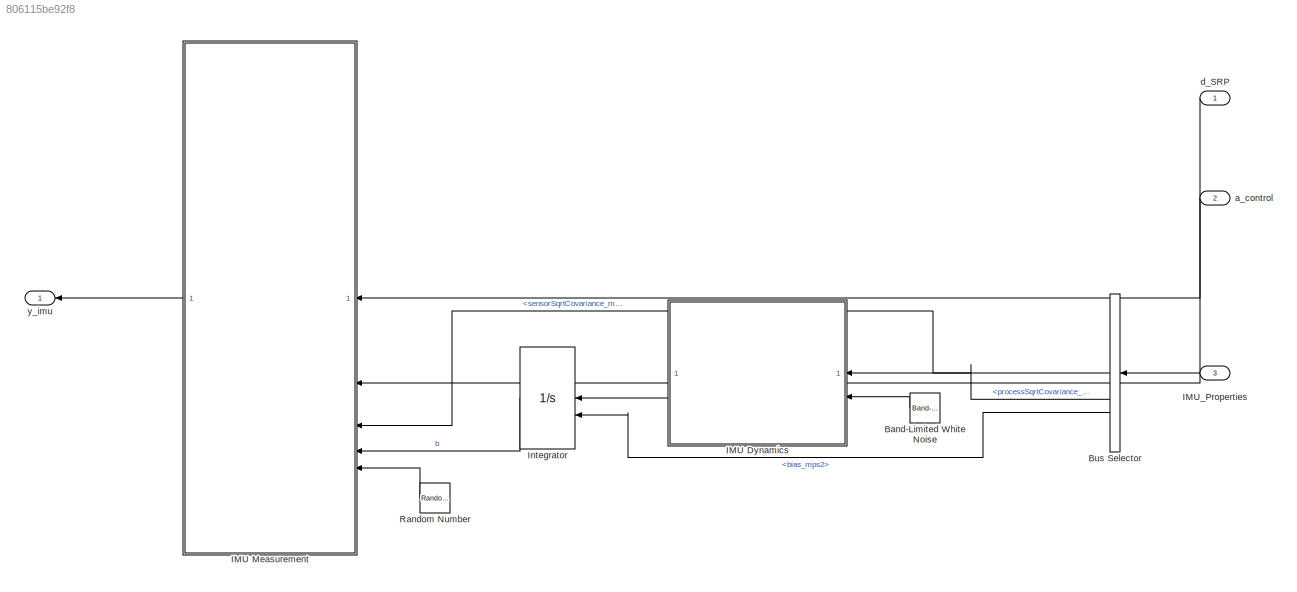
MODEL slx_806115be92f8
KIND model
CONFIG AbsTol = auto
CONFIG EnableMultiTasking = off
CONFIG FixedStep = dt
CONFIG MaxStep = auto
CONFIG MinStep = auto
CONFIG RelTol = 1e-3
CONFIG SampleTimeConstraint = Unconstrained
CONFIG SolverName = ode4
CONFIG StartTime = 0.0
CONFIG StopTime = 10.0
BLOCK [Reference] Band-Limited White Noise  REF=simulink/Sources/Band-Limited
White Noise
  SourceBlock = simulink/Sources/Band-Limited\nWhite Noise
  SourceType = Band-Limited White Noise.
BLOCK [BusSelector] Bus Selector
  OutputSignals = sensorSqrtCovariance_mps2,processSqrtCovariance_mps3,bias_mps2
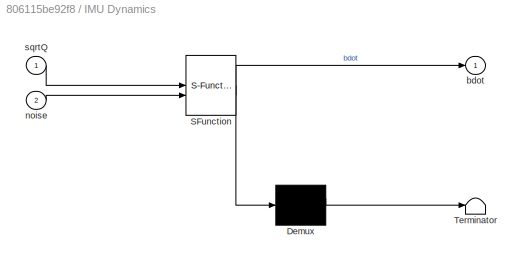
BLOCK [SubSystem] IMU Dynamics
  ErrorFcn = Stateflow.Translate.translate
  LibrarySourceBlock = simulink/User-Defined\nFunctions/MATLAB Function
  PermitHierarchicalResolution = ExplicitOnly
  SFBlockType = MATLAB Function
  TreatAsAtomicUnit = on
BLOCK [Demux] IMU Dynamics/ Demux 
  Outputs = 1
BLOCK [S-Function] IMU Dynamics/ SFunction 
  EnableBusSupport = on
  FunctionName = sf_sfun
  PortCounts = [2 2]
  SFcnIsStateOwnerBlock = off
  SFunctionDeploymentMode = off
  Tag = Stateflow S-Function 2
BLOCK [Terminator] IMU Dynamics/ Terminator 
BLOCK [Outport] IMU Dynamics/bdot
BLOCK [Inport] IMU Dynamics/noise
  Port = 2
BLOCK [Inport] IMU Dynamics/sqrtQ
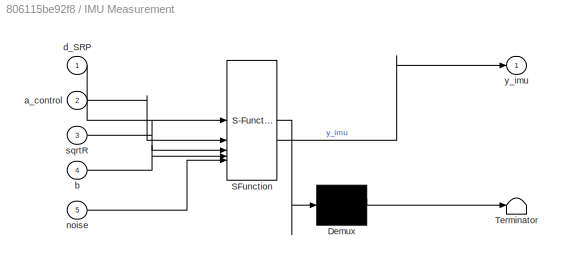
BLOCK [SubSystem] IMU Measurement
  ErrorFcn = Stateflow.Translate.translate
  LibrarySourceBlock = simulink/User-Defined\nFunctions/MATLAB Function
  PermitHierarchicalResolution = ExplicitOnly
  SFBlockType = MATLAB Function
  TreatAsAtomicUnit = on
BLOCK [Demux] IMU Measurement/ Demux 
  Outputs = 1
BLOCK [S-Function] IMU Measurement/ SFunction 
  EnableBusSupport = on
  FunctionName = sf_sfun
  PortCounts = [5 2]
  SFcnIsStateOwnerBlock = off
  SFunctionDeploymentMode = off
  Tag = Stateflow S-Function 1
BLOCK [Terminator] IMU Measurement/ Terminator 
BLOCK [Inport] IMU Measurement/a_control
  Port = 2
BLOCK [Inport] IMU Measurement/b
  Port = 4
BLOCK [Inport] IMU Measurement/d_SRP
BLOCK [Inport] IMU Measurement/noise
  Port = 5
BLOCK [Inport] IMU Measurement/sqrtR
  Port = 3
BLOCK [Outport] IMU Measurement/y_imu
BLOCK [Inport] IMU_Properties
  OutDataTypeStr = Bus: imu
  Port = 3
BLOCK [Integrator] Integrator
  InitialConditionSource = external
BLOCK [RandomNumber] Random Number
  Mean = [0;0;0]
  SampleTime = dt
  Seed = [50;60;70]
  Variance = [1;1;1]
BLOCK [Inport] a_control
  Port = 2
  PortDimensions = 3
BLOCK [Inport] d_SRP
  PortDimensions = 3
BLOCK [Outport] y_imu
LINE Band-Limited White Noise:1 -> IMU Dynamics:2
LINE Bus Selector:1 -> IMU Measurement:3
LINE Bus Selector:2 -> IMU Dynamics:1
LINE Bus Selector:3 -> Integrator:2
LINE IMU Dynamics:1 -> Integrator:1
LINE IMU Measurement:1 -> y_imu:1
LINE IMU_Properties:1 -> Bus Selector:1
LINE Integrator:1 -> IMU Measurement:4
LINE Random Number:1 -> IMU Measurement:5
LINE a_control:1 -> IMU Measurement:2
LINE d_SRP:1 -> IMU Measurement:1
CHART IMU Measurement states=1 transitions=1
  STATE_LABEL 'eML_blk_kernel()'
  STATE_LABEL 'SCRIPT:\nfunction y_imu = imuMeasurement(d_SRP,a_control,sqrtR,b,noise)\n\ny_imu = imuMeasurement(d_SRP,a_control,b,sqrtR,noise);\n\nend\n'
CHART IMU Dynamics states=1 transitions=1
  STATE_LABEL 'eML_blk_kernel()'
  STATE_LABEL 'SCRIPT:\nfunction bdot = imuDynamics(sqrtQ,noise)\n\nbdot = imuDynamics(sqrtQ,noise);\n\nend\n\n'
CHART  states=0 transitions=0
CHART  states=0 transitions=0
